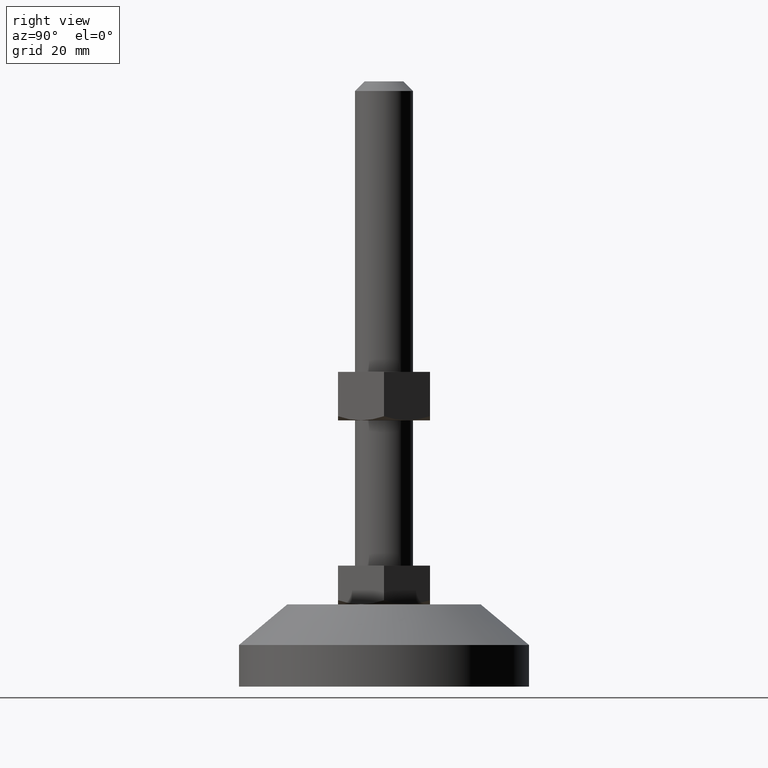
[diagram: clean part render]
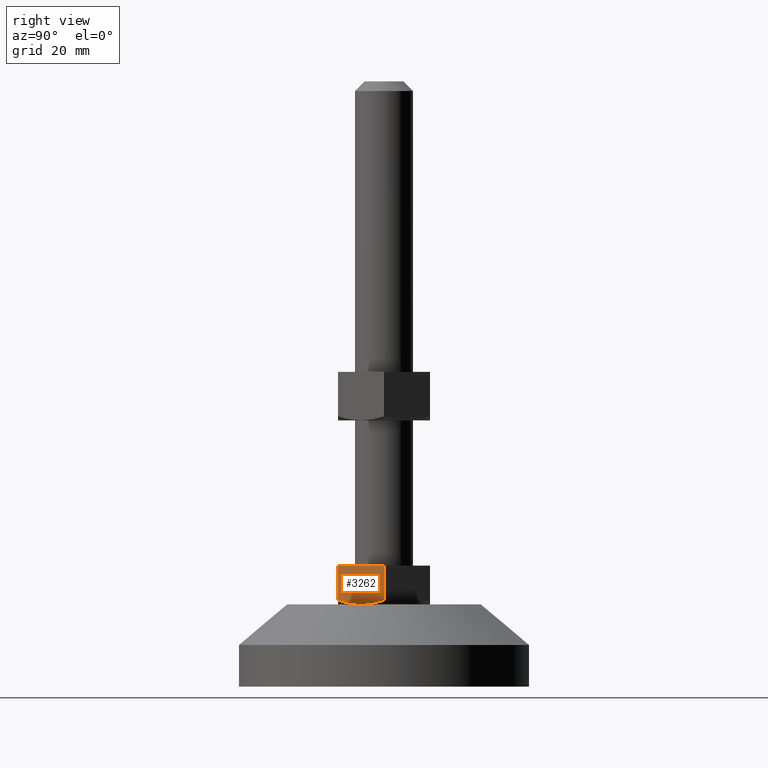
[diagram: same view with one face highlighted and labeled with its STEP entity id]
A machine part, right view. The second image highlights one B-rep face of the part: STEP entity #3262.
In plain terms, the highlighted face is a freeform B-spline surface patch.
Its self-contained STEP definition (entity closure, byte-faithful):
#3122=CARTESIAN_POINT('',(5.484827999999999,-9.499999999999890,25.0));
#3123=VERTEX_POINT('',#3122);
#3129=CARTESIAN_POINT('',(10.969654999999999,0.0,25.0));
#3130=VERTEX_POINT('',#3129);
#3131=CARTESIAN_POINT('',(10.969654999999999,0.0,25.0));
#3132=CARTESIAN_POINT('',(5.484827999999999,-9.499999999999890,25.0));
#3133=QUASI_UNIFORM_CURVE('',1,(#3131,#3132),.UNSPECIFIED.,.F.,.U.);
#3134=EDGE_CURVE('',#3130,#3123,#3133,.T.);
#3191=CARTESIAN_POINT('',(5.484827999999999,-9.499999999999890,17.848505809114851));
#3192=VERTEX_POINT('',#3191);
#3209=CARTESIAN_POINT('',(5.484827999999999,-9.499999999999890,25.0));
#3210=CARTESIAN_POINT('',(5.484827999999999,-9.499999999999890,17.848505809114851));
#3211=QUASI_UNIFORM_CURVE('',1,(#3209,#3210),.UNSPECIFIED.,.F.,.U.);
#3212=EDGE_CURVE('',#3123,#3192,#3211,.T.);
#3218=CARTESIAN_POINT('',(5.210860901980651,-9.974524981587036,16.600400015505560));
#3219=CARTESIAN_POINT('',(11.243622245133871,0.474525236397007,16.600400015505560));
#3220=CARTESIAN_POINT('',(5.210860901980651,-9.974524981587036,25.399600199071170));
#3221=CARTESIAN_POINT('',(11.243622245133871,0.474525236397007,25.399600199071170));
#3222=B_SPLINE_SURFACE_WITH_KNOTS('',1,1,((#3218,#3220),(#3219,#3221)),.UNSPECIFIED.,.F.,.F.,.U.,(2,2),(2,2),(0.0,12.065523605770130),(0.0,8.799200183565610),.UNSPECIFIED.);
#3223=ORIENTED_EDGE('',*,*,#3212,.T.);
#3224=CARTESIAN_POINT('',(8.227241667976021,-4.749999709056900,17.0));
#3225=VERTEX_POINT('',#3224);
#3226=CARTESIAN_POINT('',(5.484827999999999,-9.499999999999890,17.848505809114851));
#3227=CARTESIAN_POINT('',(5.932612061584650,-8.724415175710229,17.589977536867028));
#3228=CARTESIAN_POINT('',(6.383660836356568,-7.943175701733533,17.376903389261940));
#3229=CARTESIAN_POINT('',(7.067289200451378,-6.759096521314424,17.155520713464931));
#3230=CARTESIAN_POINT('',(7.296344008677924,-6.362361915436757,17.098137173135228));
#3231=CARTESIAN_POINT('',(7.757121243271395,-5.564272253057636,17.020510950032499));
#3232=CARTESIAN_POINT('',(7.988845974750946,-5.162913203983576,17.000300361005831));
#3233=CARTESIAN_POINT('',(8.223747747547641,-4.756051357371354,17.000001100235849));
#3234=CARTESIAN_POINT('',(8.225494643370297,-4.753025644743552,16.999999995959278));
#3235=CARTESIAN_POINT('',(8.227241668067151,-4.749999708899062,17.000000012490069));
#3236=B_SPLINE_CURVE_WITH_KNOTS('',3,(#3226,#3227,#3228,#3229,#3230,#3231,#3232,#3233,#3234,#3235),.UNSPECIFIED.,.F.,.U.,(4,2,2,2,4),(0.0,0.250000000000000,0.375000000000001,0.500000000000001,0.500936481686321),.UNSPECIFIED.);
#3237=EDGE_CURVE('',#3192,#3225,#3236,.T.);
#3238=ORIENTED_EDGE('',*,*,#3237,.T.);
#3239=CARTESIAN_POINT('',(10.969654999999999,3.993368E-016,17.848505615152849));
#3240=VERTEX_POINT('',#3239);
#3241=CARTESIAN_POINT('',(8.227241667976021,-4.749999709056900,17.0));
#3242=CARTESIAN_POINT('',(8.342089602191917,-4.551077231638561,17.000001099214380));
#3243=CARTESIAN_POINT('',(8.457494483676420,-4.351190093155847,17.004845908462851));
#3244=CARTESIAN_POINT('',(8.689020401382981,-3.950175399672837,17.024220373767079));
#3245=CARTESIAN_POINT('',(8.805251946535615,-3.748856437570662,17.038873664551829));
#3246=CARTESIAN_POINT('',(9.152783477608560,-3.146914107358079,17.096877071955660));
#3247=CARTESIAN_POINT('',(9.382917639881569,-2.748310005242626,17.154303556495151));
#3248=CARTESIAN_POINT('',(10.069222903220041,-1.559594298855656,17.376053635708111));
#3249=CARTESIAN_POINT('',(10.521312745618570,-0.776551642672334,17.589655093896461));
#3250=CARTESIAN_POINT('',(10.969655000000021,2.566893E-014,17.848505615152671));
#3251=B_SPLINE_CURVE_WITH_KNOTS('',3,(#3241,#3242,#3243,#3244,#3245,#3246,#3247,#3248,#3249,#3250),.UNSPECIFIED.,.F.,.U.,(4,2,2,2,4),(0.500936481714862,0.562500000000001,0.625000000000001,0.750000000000001,1.0),.UNSPECIFIED.);
#3252=EDGE_CURVE('',#3225,#3240,#3251,.T.);
#3253=ORIENTED_EDGE('',*,*,#3252,.T.);
#3254=CARTESIAN_POINT('',(10.969654999999999,0.0,25.0));
#3255=CARTESIAN_POINT('',(10.969654999999999,3.993368E-016,17.848505615152849));
#3256=QUASI_UNIFORM_CURVE('',1,(#3254,#3255),.UNSPECIFIED.,.F.,.U.);
#3257=EDGE_CURVE('',#3130,#3240,#3256,.T.);
#3258=ORIENTED_EDGE('',*,*,#3257,.F.);
#3259=ORIENTED_EDGE('',*,*,#3134,.T.);
#3260=EDGE_LOOP('',(#3223,#3238,#3253,#3258,#3259));
#3261=FACE_OUTER_BOUND('',#3260,.T.);
#3262=ADVANCED_FACE('',(#3261),#3222,.T.);